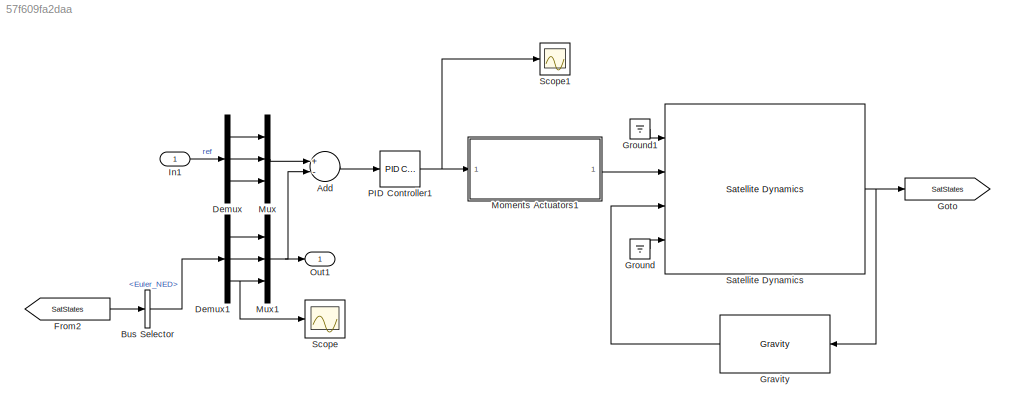
MODEL slx_57f609fa2daa
KIND model
CONFIG AbsTol = auto
CONFIG EnableMultiTasking = off
CONFIG FixedStep = dT
CONFIG MaxStep = auto
CONFIG MinStep = auto
CONFIG RelTol = 1e-3
CONFIG SampleTimeConstraint = Unconstrained
CONFIG Solver = FixedStepAuto
CONFIG SolverName = FixedStepAuto
CONFIG StartTime = 0.0
CONFIG StopTime = TFinal
BLOCK [Sum] Add
  InputSameDT = off
  Inputs = +-
  OutDataTypeStr = Inherit: Inherit via internal rule
  Ports = [2, 1]
  SaturateOnIntegerOverflow = off
BLOCK [BusSelector] Bus Selector
  OutputAsBus = off
  OutputSignals = Euler_NED
  Ports = [1, 1]
BLOCK [Demux] Demux
  DisplayOption = bar
  Outputs = 3
  Ports = [1, 3]
BLOCK [Demux] Demux1
  DisplayOption = bar
  Outputs = 3
  Ports = [1, 3]
BLOCK [From] From2
  GotoTag = SatStates
BLOCK [Goto] Goto
  GotoTag = SatStates
BLOCK [Reference] Gravity  REF=scars_library/Environment/Gravity  (lib defined in slx_0992aaab4a30)
  Ports = [1, 1]
  SourceBlock = scars_library/Environment/Gravity
BLOCK [Ground] Ground
BLOCK [Ground] Ground1
BLOCK [Inport] In1
  IconDisplay = Port number
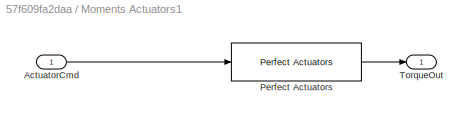
BLOCK [SubSystem] Moments Actuators1
  Ports = [1, 1]
  RequestExecContextInheritance = off
BLOCK [Inport] Moments Actuators1/ActuatorCmd
  IconDisplay = Port number
BLOCK [Reference] Moments Actuators1/Perfect Actuators  REF=scars_library/Actuators/Perfect Actuators  (lib defined in slx_0992aaab4a30)
  Ports = [1, 1]
  SourceBlock = scars_library/Actuators/Perfect Actuators
BLOCK [Outport] Moments Actuators1/TorqueOut
  IconDisplay = Port number
BLOCK [Mux] Mux
  DisplayOption = bar
  Inputs = 3
  Ports = [3, 1]
BLOCK [Mux] Mux1
  DisplayOption = bar
  Inputs = 3
  Ports = [3, 1]
BLOCK [Outport] Out1
  IconDisplay = Port number
BLOCK [Reference] PID Controller1  REF=simulink/Continuous/PID Controller
  Ports = [1, 1]
  SourceBlock = simulink/Continuous/PID Controller
  SourceProductBaseCode = SL
  SourceProductName = Simulink
  SourceType = PID 1dof
BLOCK [Reference] Satellite Dynamics  REF=scars_library/Advanced/Satellite Dynamics  (lib defined in slx_0992aaab4a30)
  Ports = [4, 1]
  SourceBlock = scars_library/Advanced/Satellite Dynamics
  SourceType = SubSystem
BLOCK [Scope] Scope
  Floating = off
  NumInputPorts = 1
  Ports = [1]
  ScopeSpecificationString = Simulink.scopes.TimeScopeBlockCfg('CurrentConfiguration', extmgr.ConfigurationSet(extmgr.Configuration('Core','General UI',true),extmgr.Configuration('Core','Source UI',true),extmgr.Configuration('Sources','WiredSimulink',true),extmgr.Configuration('Visuals','Time Domain',true,'SerializedDisplays',{struct('MinYLimReal','-0.000002','MaxYLimReal','0.000019','YLabelReal','','MinYLimMag','0.000000','M...<+1390ch>
BLOCK [Scope] Scope1
  Floating = off
  NumInputPorts = 1
  Ports = [1]
  ScopeSpecificationString = Simulink.scopes.TimeScopeBlockCfg('CurrentConfiguration', extmgr.ConfigurationSet(extmgr.Configuration('Core','General UI',true),extmgr.Configuration('Core','Source UI',true),extmgr.Configuration('Sources','WiredSimulink',true,'DataLoggingVariableName','ScopeData1'),extmgr.Configuration('Visuals','Time Domain',true,'SerializedDisplays',{struct('MinYLimReal','-0.000002','MaxYLimReal','0.0000008','Y...<+1482ch>
LINE Add:1 -> PID Controller1:1
LINE Bus Selector:1 -> Demux1:1
LINE Demux1:1 -> Mux1:1
LINE Demux1:2 -> Mux1:2
NET Demux1:3 -> Mux1:3, Scope:1
LINE Demux:1 -> Mux:1
LINE Demux:2 -> Mux:2
LINE Demux:3 -> Mux:3
LINE From2:1 -> Bus Selector:1
LINE Gravity:1 -> Satellite Dynamics:3
LINE Ground1:1 -> Satellite Dynamics:1
LINE Ground:1 -> Satellite Dynamics:4
LINE In1:1 -> Demux:1
LINE Moments Actuators1/ActuatorCmd:1 -> Moments Actuators1/Perfect Actuators:1
LINE Moments Actuators1/Perfect Actuators:1 -> Moments Actuators1/TorqueOut:1
LINE Moments Actuators1:1 -> Satellite Dynamics:2
NET Mux1:1 -> Add:2, Out1:1
LINE Mux:1 -> Add:1
NET PID Controller1:1 -> Moments Actuators1:1, Scope1:1
NET Satellite Dynamics:1 -> Goto:1, Gravity:1
note: NET lines group one-source signal fan-out (src -> all destinations, sorted); 1:1 wires keep LINE
